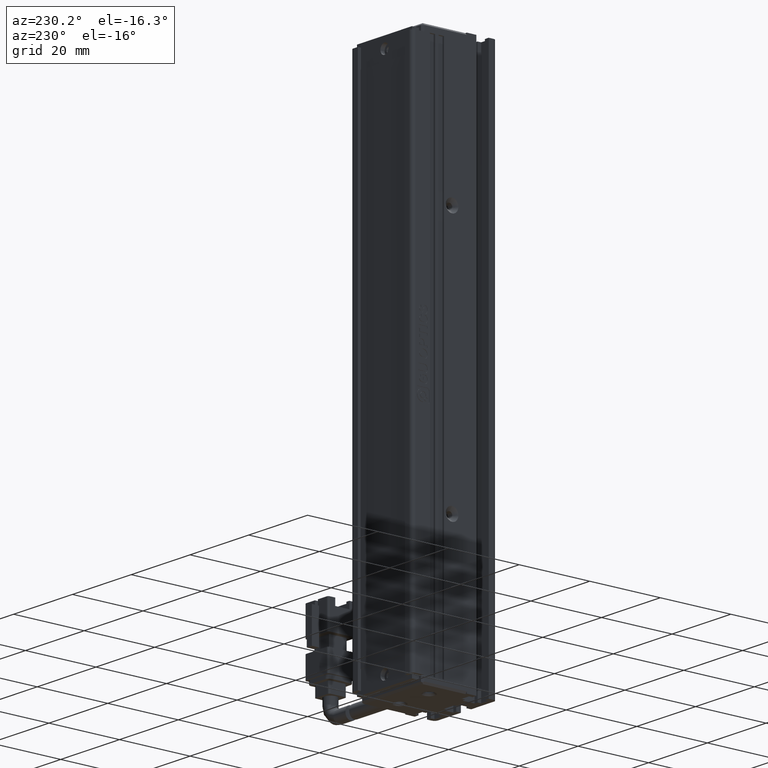
[diagram: clean part render]
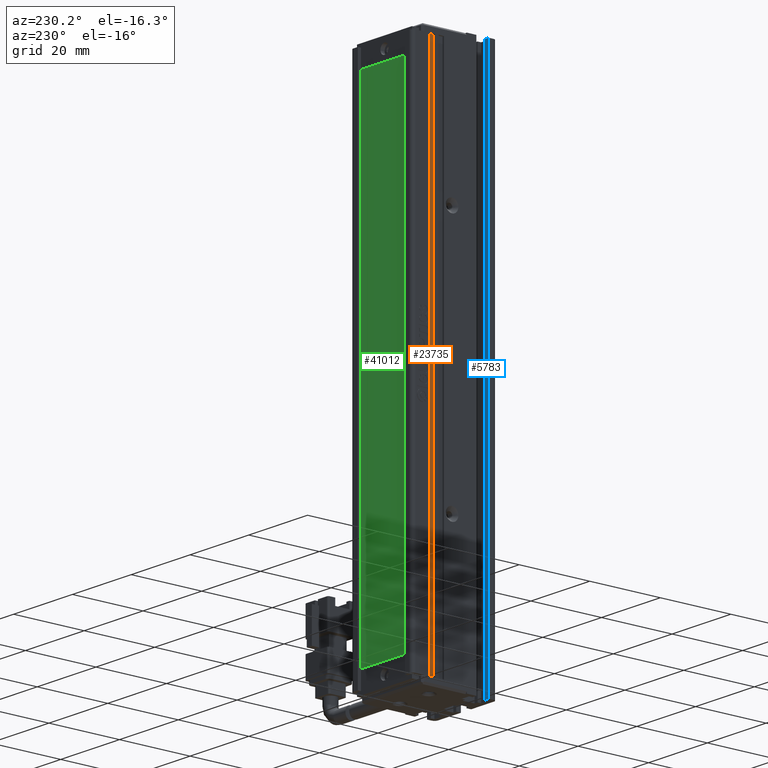
[diagram: same view with three faces highlighted in distinct colors, each labeled with its STEP entity id]
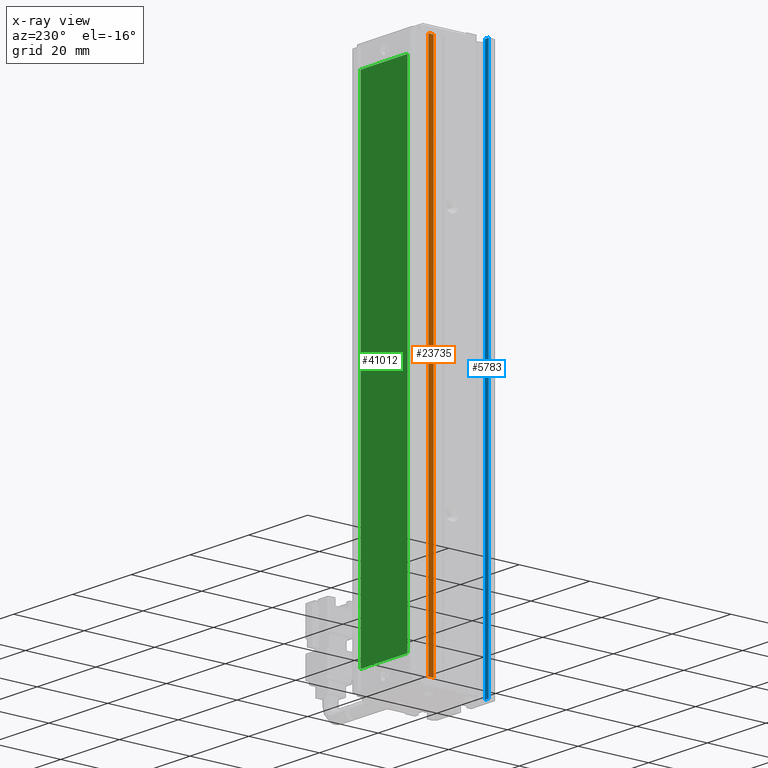
[diagram: x-ray of the same camera — body ghosted, the three highlighted faces saturated]
A machine part, auxiliary view with three faces highlighted in distinct colors.
The next image is the same camera in x-ray (body ghosted, the three faces saturated) — at least one of them is partly hidden behind the body in this view.
Their STEP definitions:

[orange] entity #23735 — the highlighted planar face has unit normal (1, 0, -0).
#1032 = AXIS2_PLACEMENT_3D ( 'NONE', #9629, #28798, #42128 ) ;
#1878 = VECTOR ( 'NONE', #31542, 1000.000000000000000 ) ;
#5141 = VECTOR ( 'NONE', #30247, 1000.000000000000000 ) ;
#5317 = VECTOR ( 'NONE', #29944, 1000.000000000000000 ) ;
#5982 = DIRECTION ( 'NONE',  ( -0.0000000000000000000, -1.000000000000000000, -0.0000000000000000000 ) ) ;
#7742 = FACE_OUTER_BOUND ( 'NONE', #9299, .T. ) ;
#8786 = ORIENTED_EDGE ( 'NONE', *, *, #15211, .F. ) ;
#8801 = CARTESIAN_POINT ( 'NONE',  ( 30.92537974683542100, 28.49073232304836600, -40.00000000000000700 ) ) ;
#9299 = EDGE_LOOP ( 'NONE', ( #8786, #25777, #41569, #11606 ) ) ;
#9452 = VERTEX_POINT ( 'NONE', #30873 ) ;
#9629 = CARTESIAN_POINT ( 'NONE',  ( 30.92537974683542100, 7.083797468354437600, -40.00000000000000700 ) ) ;
#9958 = EDGE_CURVE ( 'NONE', #42272, #14150, #27736, .T. ) ;
#10172 = EDGE_CURVE ( 'NONE', #14150, #9452, #19526, .T. ) ;
#11606 = ORIENTED_EDGE ( 'NONE', *, *, #9958, .F. ) ;
#14150 = VERTEX_POINT ( 'NONE', #39327 ) ;
#15211 = EDGE_CURVE ( 'NONE', #32058, #42272, #15597, .T. ) ;
#15597 = LINE ( 'NONE', #41331, #31422 ) ;
#19526 = LINE ( 'NONE', #19980, #5317 ) ;
#19980 = CARTESIAN_POINT ( 'NONE',  ( 30.92537974683542100, 7.083797468354437600, -188.0000000000000000 ) ) ;
#22275 = PLANE ( 'NONE',  #1032 ) ;
#23735 = ADVANCED_FACE ( 'NONE', ( #7742 ), #22275, .F. ) ;
#25777 = ORIENTED_EDGE ( 'NONE', *, *, #32503, .T. ) ;
#27736 = LINE ( 'NONE', #8801, #1878 ) ;
#28798 = DIRECTION ( 'NONE',  ( 1.000000000000000000, 0.0000000000000000000, -0.0000000000000000000 ) ) ;
#29944 = DIRECTION ( 'NONE',  ( 0.0000000000000000000, 1.000000000000000000, 0.0000000000000000000 ) ) ;
#30247 = DIRECTION ( 'NONE',  ( -0.0000000000000000000, 0.0000000000000000000, -1.000000000000000000 ) ) ;
#30557 = CARTESIAN_POINT ( 'NONE',  ( 30.92537974683542100, 29.99073232304837000, -40.00000000000000700 ) ) ;
#30873 = CARTESIAN_POINT ( 'NONE',  ( 30.92537974683542100, 29.99073232304837000, -188.0000000000000000 ) ) ;
#31096 = LINE ( 'NONE', #30557, #5141 ) ;
#31422 = VECTOR ( 'NONE', #5982, 1000.000000000000000 ) ;
#31542 = DIRECTION ( 'NONE',  ( -0.0000000000000000000, 0.0000000000000000000, -1.000000000000000000 ) ) ;
#32058 = VERTEX_POINT ( 'NONE', #36902 ) ;
#32503 = EDGE_CURVE ( 'NONE', #32058, #9452, #31096, .T. ) ;
#35935 = CARTESIAN_POINT ( 'NONE',  ( 30.92537974683542100, 28.49073232304836600, -42.00000000000000700 ) ) ;
#36902 = CARTESIAN_POINT ( 'NONE',  ( 30.92537974683542100, 29.99073232304837000, -42.00000000000000700 ) ) ;
#39327 = CARTESIAN_POINT ( 'NONE',  ( 30.92537974683542100, 28.49073232304836600, -188.0000000000000000 ) ) ;
#41331 = CARTESIAN_POINT ( 'NONE',  ( 30.92537974683542100, 7.083797468354437600, -42.00000000000000700 ) ) ;
#41569 = ORIENTED_EDGE ( 'NONE', *, *, #10172, .F. ) ;
#42128 = DIRECTION ( 'NONE',  ( -0.0000000000000000000, 0.0000000000000000000, -1.000000000000000000 ) ) ;
#42272 = VERTEX_POINT ( 'NONE', #35935 ) ;

[blue] entity #5783 — the highlighted planar face has unit normal (0, -1, 0).
#3009 = DIRECTION ( 'NONE',  ( 1.000000000000000000, 0.0000000000000000000, 0.0000000000000000000 ) ) ;
#3026 = DIRECTION ( 'NONE',  ( -0.0000000000000000000, -0.0000000000000000000, -1.000000000000000000 ) ) ;
#4292 = ORIENTED_EDGE ( 'NONE', *, *, #23193, .F. ) ;
#4774 = CARTESIAN_POINT ( 'NONE',  ( 31.72537974683542600, 13.29073232304837200, -40.00000000000000700 ) ) ;
#5286 = EDGE_CURVE ( 'NONE', #41398, #32090, #39466, .T. ) ;
#5783 = ADVANCED_FACE ( 'NONE', ( #11374 ), #31503, .F. ) ;
#6083 = AXIS2_PLACEMENT_3D ( 'NONE', #19374, #19089, #19230 ) ;
#6481 = VECTOR ( 'NONE', #3009, 1000.000000000000000 ) ;
#7767 = VERTEX_POINT ( 'NONE', #9289 ) ;
#7889 = VECTOR ( 'NONE', #3026, 1000.000000000000000 ) ;
#8264 = VERTEX_POINT ( 'NONE', #11692 ) ;
#8283 = VECTOR ( 'NONE', #23828, 1000.000000000000000 ) ;
#9149 = EDGE_CURVE ( 'NONE', #32090, #8264, #21741, .T. ) ;
#9289 = CARTESIAN_POINT ( 'NONE',  ( 31.72537974683542600, 13.29073232304837200, -40.00000000000000700 ) ) ;
#11374 = FACE_OUTER_BOUND ( 'NONE', #26590, .T. ) ;
#11692 = CARTESIAN_POINT ( 'NONE',  ( 31.72537974683542600, 13.29073232304837200, -190.0000000000000000 ) ) ;
#13215 = CARTESIAN_POINT ( 'NONE',  ( 40.92537974683542500, 13.29073232304837200, -40.00000000000000700 ) ) ;
#15389 = VECTOR ( 'NONE', #23022, 1000.000000000000000 ) ;
#19089 = DIRECTION ( 'NONE',  ( 0.0000000000000000000, -1.000000000000000000, 0.0000000000000000000 ) ) ;
#19230 = DIRECTION ( 'NONE',  ( 0.0000000000000000000, -0.0000000000000000000, -1.000000000000000000 ) ) ;
#19374 = CARTESIAN_POINT ( 'NONE',  ( 40.92537974683542500, 13.29073232304837200, -40.00000000000000700 ) ) ;
#21741 = LINE ( 'NONE', #35304, #6481 ) ;
#22484 = CARTESIAN_POINT ( 'NONE',  ( 30.42537974683542100, 13.29073232304837200, -40.00000000000000700 ) ) ;
#23022 = DIRECTION ( 'NONE',  ( -1.000000000000000000, -0.0000000000000000000, -0.0000000000000000000 ) ) ;
#23193 = EDGE_CURVE ( 'NONE', #7767, #41398, #41458, .T. ) ;
#23828 = DIRECTION ( 'NONE',  ( -0.0000000000000000000, -0.0000000000000000000, -1.000000000000000000 ) ) ;
#26590 = EDGE_LOOP ( 'NONE', ( #29433, #4292, #40263, #30872 ) ) ;
#28384 = CARTESIAN_POINT ( 'NONE',  ( 30.42537974683542100, 13.29073232304837200, -40.00000000000000700 ) ) ;
#29433 = ORIENTED_EDGE ( 'NONE', *, *, #5286, .F. ) ;
#30872 = ORIENTED_EDGE ( 'NONE', *, *, #9149, .F. ) ;
#31503 = PLANE ( 'NONE',  #6083 ) ;
#32090 = VERTEX_POINT ( 'NONE', #40334 ) ;
#35304 = CARTESIAN_POINT ( 'NONE',  ( 40.92537974683542500, 13.29073232304837200, -190.0000000000000000 ) ) ;
#35756 = LINE ( 'NONE', #4774, #8283 ) ;
#38746 = EDGE_CURVE ( 'NONE', #7767, #8264, #35756, .T. ) ;
#39466 = LINE ( 'NONE', #22484, #7889 ) ;
#40263 = ORIENTED_EDGE ( 'NONE', *, *, #38746, .T. ) ;
#40334 = CARTESIAN_POINT ( 'NONE',  ( 30.42537974683542100, 13.29073232304837200, -190.0000000000000000 ) ) ;
#41398 = VERTEX_POINT ( 'NONE', #28384 ) ;
#41458 = LINE ( 'NONE', #13215, #15389 ) ;

[green] entity #41012 — the highlighted planar face has unit normal (0, 1, 0).
#1921 = EDGE_CURVE ( 'NONE', #8452, #2360, #13960, .T. ) ;
#2360 = VERTEX_POINT ( 'NONE', #31696 ) ;
#4140 = CARTESIAN_POINT ( 'NONE',  ( 48.92537974683541800, 34.19073232304837300, -46.99999999999998600 ) ) ;
#4498 = ORIENTED_EDGE ( 'NONE', *, *, #32266, .T. ) ;
#5971 = PLANE ( 'NONE',  #26043 ) ;
#8034 = CARTESIAN_POINT ( 'NONE',  ( 32.92537974683542500, 34.19073232304837300, -183.0000000000000000 ) ) ;
#8159 = CARTESIAN_POINT ( 'NONE',  ( 48.92537974683541800, 34.19073232304837300, -46.99999999999998600 ) ) ;
#8452 = VERTEX_POINT ( 'NONE', #4140 ) ;
#11338 = VECTOR ( 'NONE', #27105, 1000.000000000000000 ) ;
#11700 = DIRECTION ( 'NONE',  ( 0.0000000000000000000, 0.0000000000000000000, -1.000000000000000000 ) ) ;
#11747 = LINE ( 'NONE', #15615, #34654 ) ;
#13960 = LINE ( 'NONE', #8159, #26204 ) ;
#15615 = CARTESIAN_POINT ( 'NONE',  ( 32.92537974683543900, 34.19073232304837300, -46.99999999999998600 ) ) ;
#16442 = CARTESIAN_POINT ( 'NONE',  ( 32.92537974683542500, 34.19073232304837300, -183.0000000000000000 ) ) ;
#16581 = DIRECTION ( 'NONE',  ( 1.020425574104004100E-016, 0.0000000000000000000, 1.000000000000000000 ) ) ;
#16911 = VERTEX_POINT ( 'NONE', #31555 ) ;
#17367 = LINE ( 'NONE', #39832, #11338 ) ;
#17428 = LINE ( 'NONE', #16442, #26587 ) ;
#17504 = FACE_OUTER_BOUND ( 'NONE', #34991, .T. ) ;
#21879 = ORIENTED_EDGE ( 'NONE', *, *, #35088, .T. ) ;
#22467 = DIRECTION ( 'NONE',  ( 0.0000000000000000000, 1.000000000000000000, 0.0000000000000000000 ) ) ;
#25719 = DIRECTION ( 'NONE',  ( 0.0000000000000000000, -0.0000000000000000000, 1.000000000000000000 ) ) ;
#25997 = DIRECTION ( 'NONE',  ( 1.000000000000000000, 0.0000000000000000000, 0.0000000000000000000 ) ) ;
#26043 = AXIS2_PLACEMENT_3D ( 'NONE', #42025, #22467, #25719 ) ;
#26204 = VECTOR ( 'NONE', #11700, 1000.000000000000000 ) ;
#26587 = VECTOR ( 'NONE', #16581, 1000.000000000000000 ) ;
#27105 = DIRECTION ( 'NONE',  ( -1.000000000000000000, 0.0000000000000000000, 0.0000000000000000000 ) ) ;
#27865 = VERTEX_POINT ( 'NONE', #8034 ) ;
#28779 = ORIENTED_EDGE ( 'NONE', *, *, #29615, .T. ) ;
#29615 = EDGE_CURVE ( 'NONE', #27865, #16911, #17428, .T. ) ;
#31555 = CARTESIAN_POINT ( 'NONE',  ( 32.92537974683543900, 34.19073232304837300, -46.99999999999998600 ) ) ;
#31696 = CARTESIAN_POINT ( 'NONE',  ( 48.92537974683541800, 34.19073232304837300, -183.0000000000000000 ) ) ;
#32266 = EDGE_CURVE ( 'NONE', #16911, #8452, #11747, .T. ) ;
#34654 = VECTOR ( 'NONE', #25997, 1000.000000000000000 ) ;
#34991 = EDGE_LOOP ( 'NONE', ( #38374, #21879, #28779, #4498 ) ) ;
#35088 = EDGE_CURVE ( 'NONE', #2360, #27865, #17367, .T. ) ;
#38374 = ORIENTED_EDGE ( 'NONE', *, *, #1921, .T. ) ;
#39832 = CARTESIAN_POINT ( 'NONE',  ( 48.92537974683541800, 34.19073232304837300, -183.0000000000000000 ) ) ;
#41012 = ADVANCED_FACE ( 'NONE', ( #17504 ), #5971, .T. ) ;
#42025 = CARTESIAN_POINT ( 'NONE',  ( 0.0000000000000000000, 34.19073232304837300, 0.0000000000000000000 ) ) ;